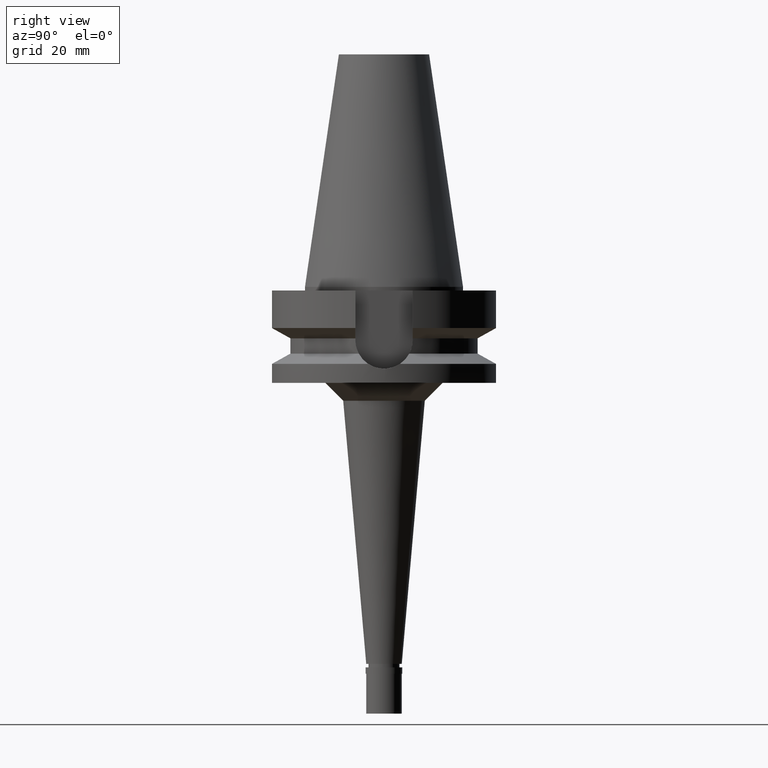
[diagram: clean part render]
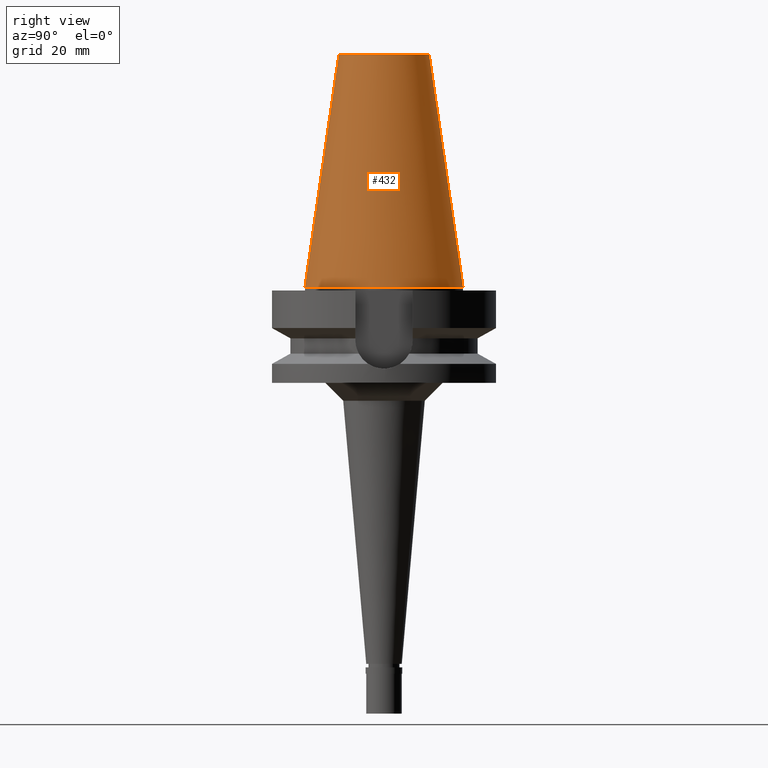
[diagram: same view with one face highlighted and labeled with its STEP entity id]
A machine part, right view. The second image highlights one B-rep face of the part: STEP entity #432.
In plain terms, the highlighted conical surface has half-angle 8.297 deg.
Its self-contained STEP definition (entity closure, byte-faithful):
#7 = CARTESIAN_POINT ( 'NONE',  ( 0.0000000000000000000, 1.625106302469000024E-14, 2.842170943039999687E-14 ) ) ;
#21 = CARTESIAN_POINT ( 'NONE',  ( 0.0000000000000000000, 22.22500000000000142, 9.237055564880999494E-14 ) ) ;
#213 = VECTOR ( 'NONE', #2813, 1000.000000000000114 ) ;
#326 = CARTESIAN_POINT ( 'NONE',  ( 0.0000000000000000000, 1.625106302469000024E-14, 32.70000000000000284 ) ) ;
#403 = ORIENTED_EDGE ( 'NONE', *, *, #1739, .F. ) ;
#432 = ADVANCED_FACE ( 'NONE', ( #1478 ), #1815, .T. ) ;
#475 = CIRCLE ( 'NONE', #2405, 12.68766899429999917 ) ;
#495 = EDGE_CURVE ( 'NONE', #2511, #1142, #475, .T. ) ;
#540 = DIRECTION ( 'NONE',  ( 0.0000000000000000000, -1.000000000000000000, 0.0000000000000000000 ) ) ;
#603 = DIRECTION ( 'NONE',  ( 0.0000000000000000000, 0.1443043893539925626, -0.9895333461855498891 ) ) ;
#657 = EDGE_LOOP ( 'NONE', ( #785, #2528, #403, #2490 ) ) ;
#680 = CARTESIAN_POINT ( 'NONE',  ( 0.0000000000000000000, 12.68766899429999917, 65.40000000000000568 ) ) ;
#719 = AXIS2_PLACEMENT_3D ( 'NONE', #326, #2610, #540 ) ;
#731 = DIRECTION ( 'NONE',  ( 0.0000000000000000000, 0.0000000000000000000, -1.000000000000000000 ) ) ;
#781 = CARTESIAN_POINT ( 'NONE',  ( 0.0000000000000000000, -12.68766899429999917, 65.40000000000000568 ) ) ;
#785 = ORIENTED_EDGE ( 'NONE', *, *, #495, .T. ) ;
#1088 = LINE ( 'NONE', #2917, #1746 ) ;
#1142 = VERTEX_POINT ( 'NONE', #2264 ) ;
#1173 = EDGE_CURVE ( 'NONE', #2511, #1816, #1088, .T. ) ;
#1330 = DIRECTION ( 'NONE',  ( 0.0000000000000000000, 1.000000000000000000, 0.0000000000000000000 ) ) ;
#1356 = CARTESIAN_POINT ( 'NONE',  ( 0.0000000000000000000, -22.22500000000000142, 9.237055564880999494E-14 ) ) ;
#1414 = DIRECTION ( 'NONE',  ( 0.0000000000000000000, 1.000000000000000000, 0.0000000000000000000 ) ) ;
#1478 = FACE_OUTER_BOUND ( 'NONE', #657, .T. ) ;
#1739 = EDGE_CURVE ( 'NONE', #1816, #2464, #1892, .T. ) ;
#1746 = VECTOR ( 'NONE', #603, 1000.000000000000114 ) ;
#1815 = CONICAL_SURFACE ( 'NONE', #719, 17.45633449714999941, 0.1448099680379422438 ) ;
#1816 = VERTEX_POINT ( 'NONE', #21 ) ;
#1892 = CIRCLE ( 'NONE', #2621, 22.22500000000000142 ) ;
#1961 = EDGE_CURVE ( 'NONE', #1142, #2464, #2838, .T. ) ;
#2264 = CARTESIAN_POINT ( 'NONE',  ( 0.0000000000000000000, -12.68766899429999917, 65.40000000000000568 ) ) ;
#2405 = AXIS2_PLACEMENT_3D ( 'NONE', #2921, #2489, #1330 ) ;
#2464 = VERTEX_POINT ( 'NONE', #1356 ) ;
#2489 = DIRECTION ( 'NONE',  ( 0.0000000000000000000, 0.0000000000000000000, -1.000000000000000000 ) ) ;
#2490 = ORIENTED_EDGE ( 'NONE', *, *, #1173, .F. ) ;
#2511 = VERTEX_POINT ( 'NONE', #680 ) ;
#2528 = ORIENTED_EDGE ( 'NONE', *, *, #1961, .T. ) ;
#2610 = DIRECTION ( 'NONE',  ( 0.0000000000000000000, 0.0000000000000000000, -1.000000000000000000 ) ) ;
#2621 = AXIS2_PLACEMENT_3D ( 'NONE', #7, #731, #1414 ) ;
#2813 = DIRECTION ( 'NONE',  ( 0.0000000000000000000, -0.1443043893539925626, -0.9895333461855498891 ) ) ;
#2838 = LINE ( 'NONE', #781, #213 ) ;
#2917 = CARTESIAN_POINT ( 'NONE',  ( 0.0000000000000000000, 12.68766899429999917, 65.40000000000000568 ) ) ;
#2921 = CARTESIAN_POINT ( 'NONE',  ( 0.0000000000000000000, 1.625106302469000024E-14, 65.40000000000000568 ) ) ;